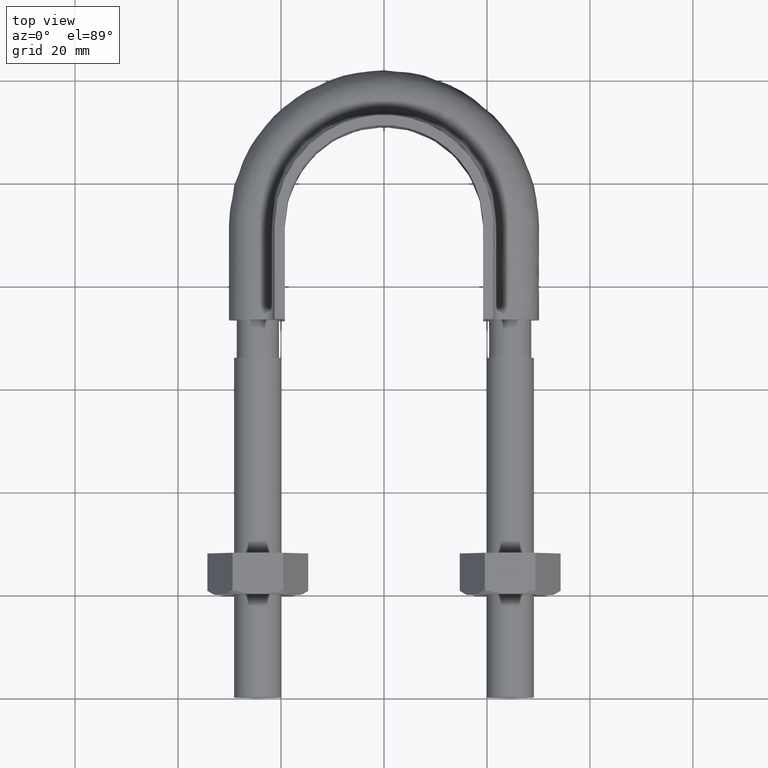
[diagram: clean part render]
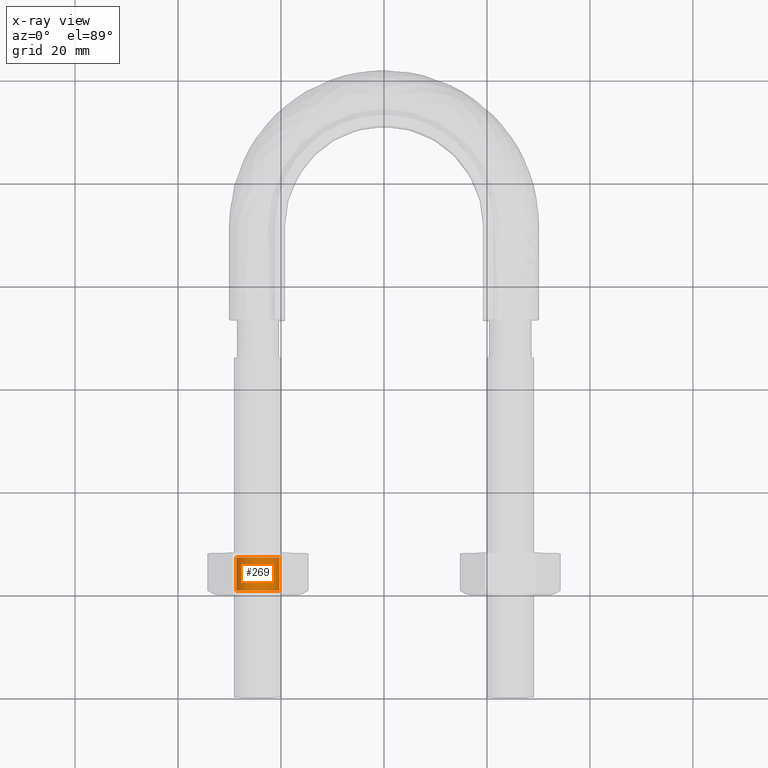
[diagram: x-ray — body ghosted, one internal face saturated and labeled with its STEP entity id]
A machine part, top view, then the same camera in x-ray: the body is ghosted and one INTERNAL B-rep face — a face not visible from any outside direction — is saturated and labeled: STEP entity #269.
In plain terms, the highlighted cylindrical surface (bore or boss wall) has radius 4.188 mm, axis along (-0, -1, -0).
Its self-contained STEP definition (entity closure, byte-faithful):
#269 = ADVANCED_FACE( '', ( #405, #406 ), #407, .F. );
#405 = FACE_OUTER_BOUND( '', #1248, .T. );
#406 = FACE_OUTER_BOUND( '', #1249, .T. );
#407 = CYLINDRICAL_SURFACE( '', #1250, 4.18800000000000 );
#1248 = EDGE_LOOP( '', ( #1656 ) );
#1249 = EDGE_LOOP( '', ( #1657 ) );
#1250 = AXIS2_PLACEMENT_3D( '', #1658, #1659, #1660 );
#1656 = ORIENTED_EDGE( '', *, *, #1936, .T. );
#1657 = ORIENTED_EDGE( '', *, *, #1935, .F. );
#1658 = CARTESIAN_POINT( '', ( -24.5000000000000, 28.0000000000000, 9.89822373370642E-015 ) );
#1659 = DIRECTION( '', ( -2.44921270764475E-016, -1.00000000000000, -3.06151588455594E-016 ) );
#1660 = DIRECTION( '', ( -0.866025403784439, 3.65183836637000E-016, -0.500000000000000 ) );
#1935 = EDGE_CURVE( '', #2145, #2145, #2146, .T. );
#1936 = EDGE_CURVE( '', #2147, #2147, #2148, .T. );
#2145 = VERTEX_POINT( '', #2649 );
#2146 = CIRCLE( '', #2650, 4.18800000000000 );
#2147 = VERTEX_POINT( '', #2651 );
#2148 = CIRCLE( '', #2652, 4.18800000000000 );
#2649 = CARTESIAN_POINT( '', ( -28.1269143910492, 20.8120000000000, -2.09399999999999 ) );
#2650 = AXIS2_PLACEMENT_3D( '', #2969, #2970, #2971 );
#2651 = CARTESIAN_POINT( '', ( -28.1269143910492, 27.1880000000000, -2.09399999999999 ) );
#2652 = AXIS2_PLACEMENT_3D( '', #2972, #2973, #2974 );
#2969 = CARTESIAN_POINT( '', ( -24.5000000000000, 20.8120000000000, 7.69760611588761E-015 ) );
#2970 = DIRECTION( '', ( 2.44921270764475E-016, 1.00000000000000, 3.06151588455594E-016 ) );
#2971 = DIRECTION( '', ( -0.866025403784439, 3.65183836637000E-016, -0.500000000000000 ) );
#2972 = CARTESIAN_POINT( '', ( -24.5000000000000, 27.1880000000000, 9.64962864388048E-015 ) );
#2973 = DIRECTION( '', ( 2.44921270764475E-016, 1.00000000000000, 3.06151588455594E-016 ) );
#2974 = DIRECTION( '', ( -0.866025403784439, 3.65183836637000E-016, -0.500000000000000 ) );